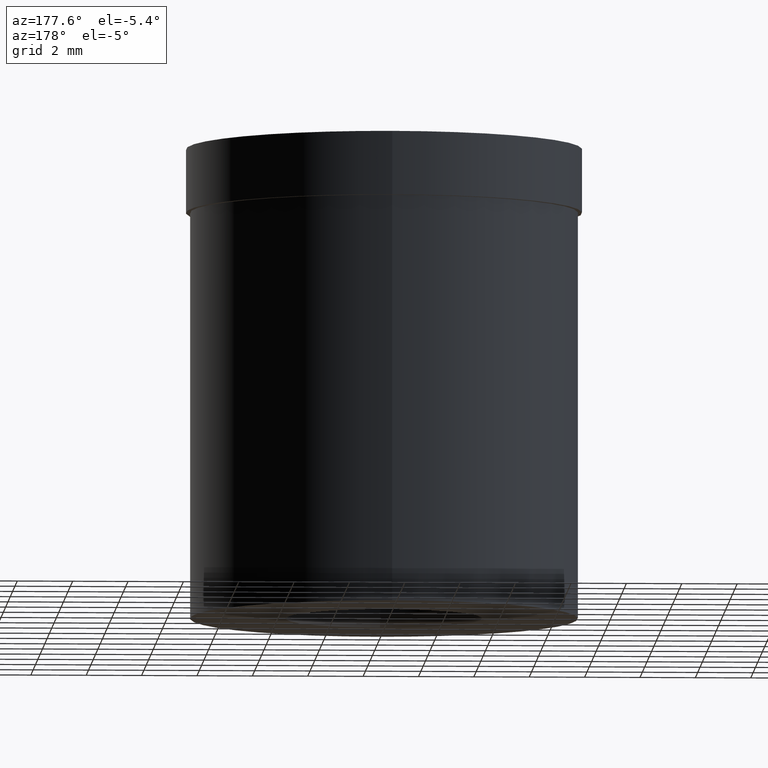
[diagram: clean part render]
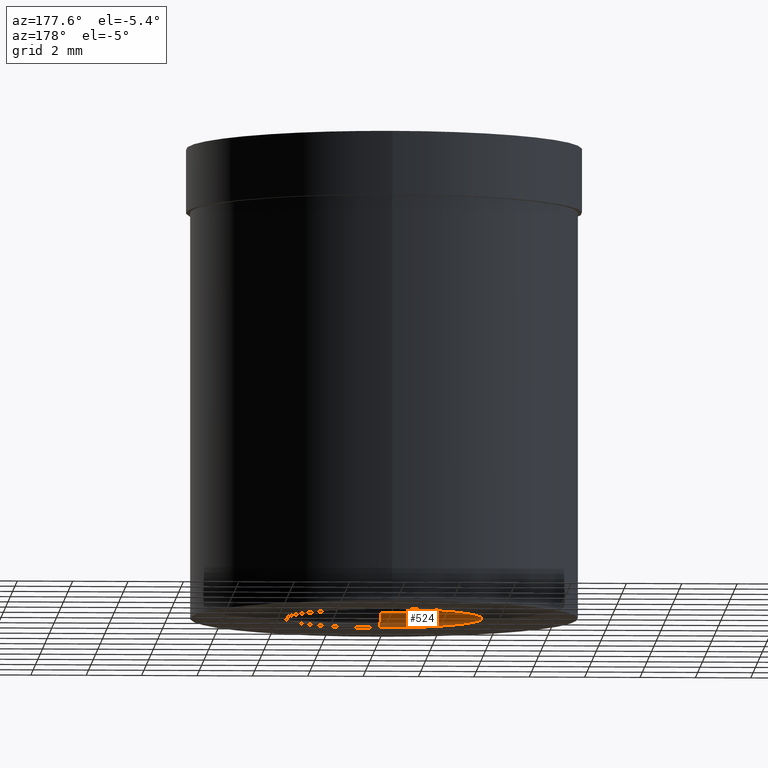
[diagram: same view with one face highlighted and labeled with its STEP entity id]
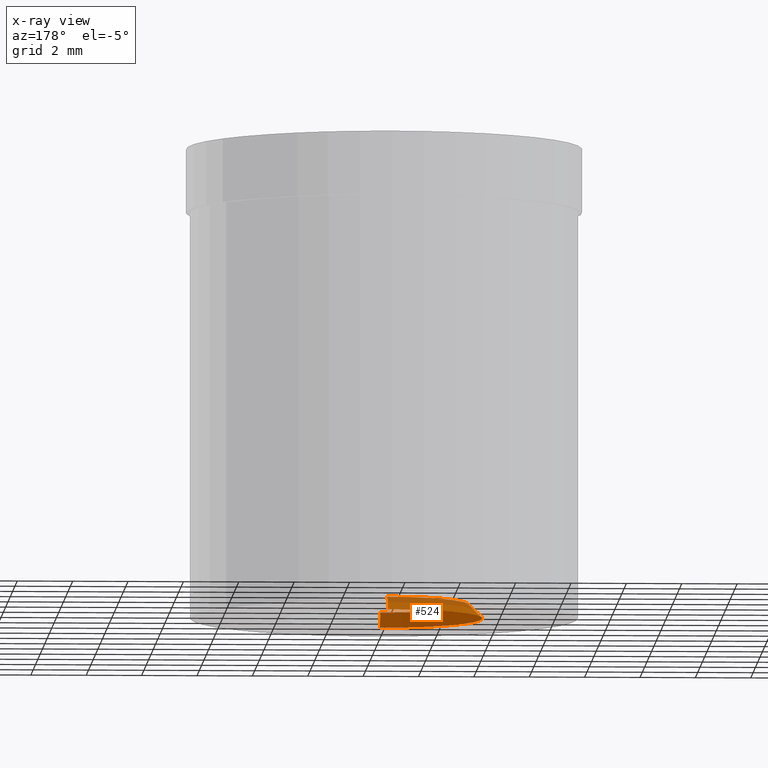
[diagram: x-ray of the same camera — body ghosted, the highlighted face saturated]
A machine part, auxiliary view. The second image highlights one B-rep face of the part: STEP entity #524.
The next image is the same camera in x-ray: the body ghosted, the highlighted face saturated — about 18% of this face is hidden behind the body in this view.
In plain terms, the highlighted conical surface has half-angle 45 deg.
Its self-contained STEP definition (entity closure, byte-faithful):
#140=CARTESIAN_POINT('',(0.E0,0.E0,-1.7E1));
#141=DIRECTION('',(0.E0,0.E0,-1.E0));
#142=DIRECTION('',(0.E0,-1.E0,0.E0));
#143=AXIS2_PLACEMENT_3D('',#140,#141,#142);
#156=DIRECTION('',(0.E0,7.071067811865E-1,7.071067811865E-1));
#157=VECTOR('',#156,7.071067811865E-1);
#158=CARTESIAN_POINT('',(0.E0,-3.55E0,-1.7E1));
#159=LINE('',#158,#157);
#163=CARTESIAN_POINT('',(0.E0,0.E0,-1.65E1));
#164=DIRECTION('',(0.E0,0.E0,-1.E0));
#165=DIRECTION('',(0.E0,-1.E0,0.E0));
#166=AXIS2_PLACEMENT_3D('',#163,#164,#165);
#171=DIRECTION('',(0.E0,-7.071067811865E-1,7.071067811865E-1));
#172=VECTOR('',#171,7.071067811865E-1);
#173=CARTESIAN_POINT('',(0.E0,3.55E0,-1.7E1));
#174=LINE('',#173,#172);
#348=CARTESIAN_POINT('',(0.E0,-3.55E0,-1.7E1));
#349=CARTESIAN_POINT('',(0.E0,3.55E0,-1.7E1));
#350=VERTEX_POINT('',#348);
#351=VERTEX_POINT('',#349);
#352=CARTESIAN_POINT('',(0.E0,3.05E0,-1.65E1));
#353=VERTEX_POINT('',#352);
#354=CARTESIAN_POINT('',(0.E0,-3.05E0,-1.65E1));
#355=VERTEX_POINT('',#354);
#510=CARTESIAN_POINT('',(0.E0,0.E0,-1.675E1));
#511=DIRECTION('',(0.E0,0.E0,-1.E0));
#512=DIRECTION('',(0.E0,-1.E0,0.E0));
#513=AXIS2_PLACEMENT_3D('',#510,#511,#512);
#514=CONICAL_SURFACE('',#513,3.3E0,4.5E1);
#516=ORIENTED_EDGE('',*,*,#515,.F.);
#517=ORIENTED_EDGE('',*,*,#503,.F.);
#519=ORIENTED_EDGE('',*,*,#518,.T.);
#521=ORIENTED_EDGE('',*,*,#520,.T.);
#522=EDGE_LOOP('',(#516,#517,#519,#521));
#523=FACE_OUTER_BOUND('',#522,.F.);
#144=CIRCLE('',#143,3.55E0);
#167=CIRCLE('',#166,3.05E0);
#503=EDGE_CURVE('',#350,#351,#144,.T.);
#515=EDGE_CURVE('',#351,#353,#174,.T.);
#518=EDGE_CURVE('',#350,#355,#159,.T.);
#520=EDGE_CURVE('',#355,#353,#167,.T.);
#524=ADVANCED_FACE('',(#523),#514,.F.);